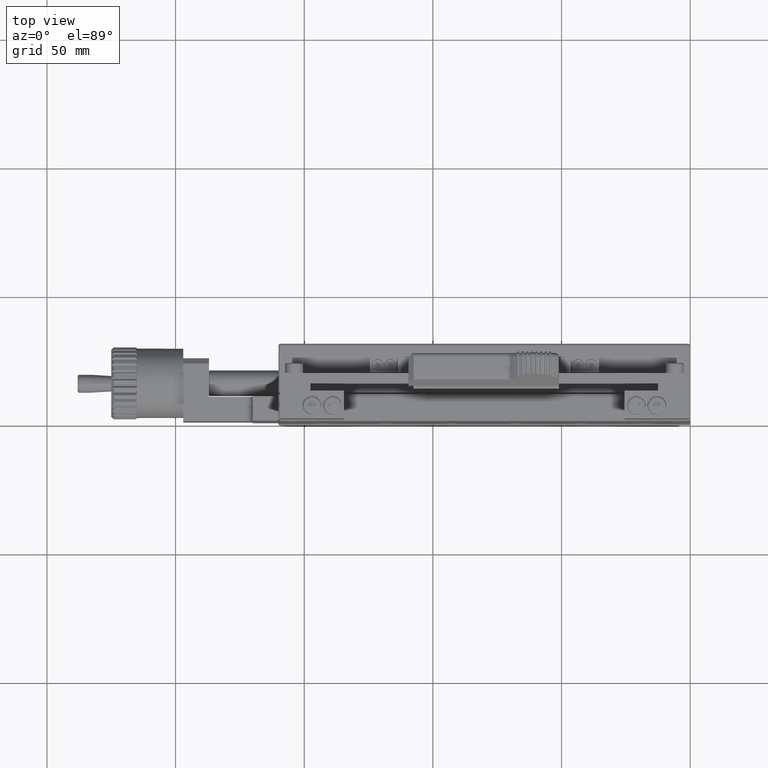
[diagram: clean part render]
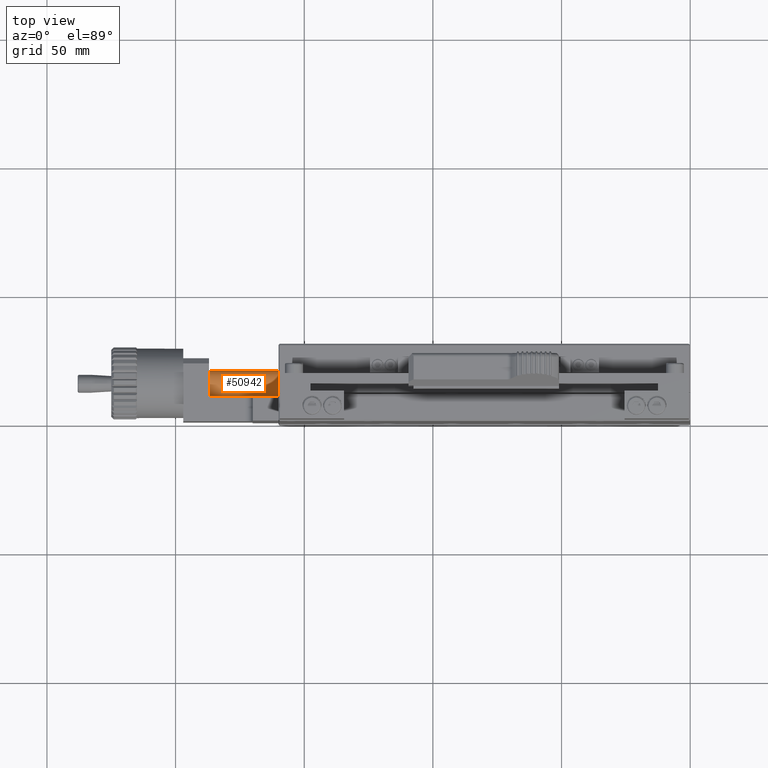
[diagram: same view with one face highlighted and labeled with its STEP entity id]
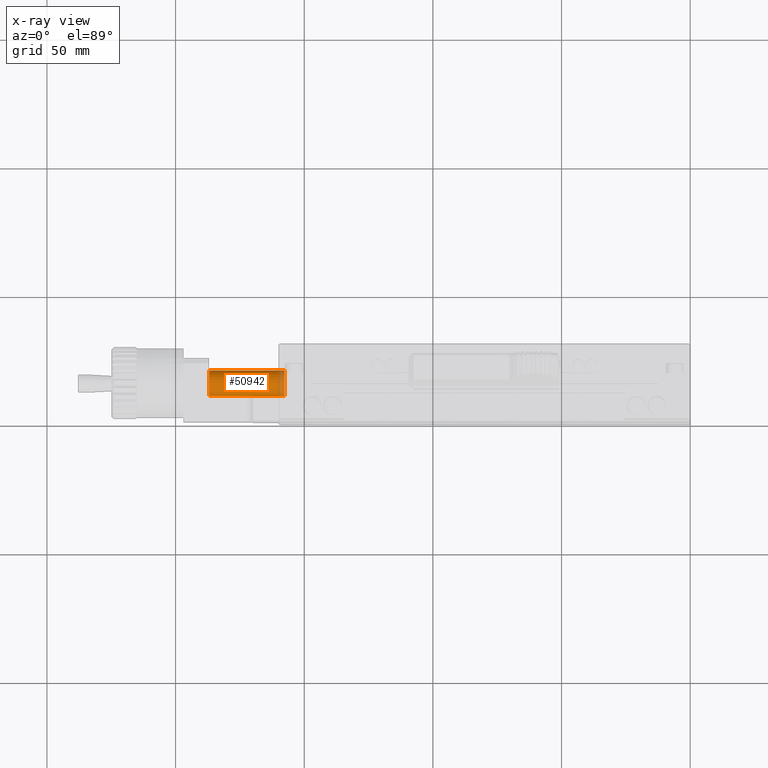
[diagram: x-ray of the same camera — body ghosted, the highlighted face saturated]
A machine part, top view. The second image highlights one B-rep face of the part: STEP entity #50942.
The next image is the same camera in x-ray: the body ghosted, the highlighted face saturated — about 8% of this face is hidden behind the body in this view.
In plain terms, the highlighted cylindrical surface (bore or boss wall) has radius 5 mm, axis along (1, 0, 0).
Its self-contained STEP definition (entity closure, byte-faithful):
#589 = FACE_OUTER_BOUND ( 'NONE', #1894, .T. ) ;
#1894 = EDGE_LOOP ( 'NONE', ( #6720 ) ) ;
#4484 = VERTEX_POINT ( 'NONE', #60445 ) ;
#4798 = CARTESIAN_POINT ( 'NONE',  ( -157.5999999999999659, 15.50000000000000000, 0.000000000000000000 ) ) ;
#5494 = EDGE_LOOP ( 'NONE', ( #10837 ) ) ;
#6720 = ORIENTED_EDGE ( 'NONE', *, *, #12371, .F. ) ;
#7027 = CIRCLE ( 'NONE', #53814, 5.000000000000000000 ) ;
#10119 = DIRECTION ( 'NONE',  ( 0.000000000000000000, 0.000000000000000000, -1.000000000000000000 ) ) ;
#10837 = ORIENTED_EDGE ( 'NONE', *, *, #27629, .T. ) ;
#12371 = EDGE_CURVE ( 'NONE', #4484, #4484, #24962, .T. ) ;
#14458 = DIRECTION ( 'NONE',  ( 0.000000000000000000, 0.000000000000000000, -1.000000000000000000 ) ) ;
#16245 = CYLINDRICAL_SURFACE ( 'NONE', #53084, 5.000000000000000000 ) ;
#19068 = VERTEX_POINT ( 'NONE', #56004 ) ;
#24962 = CIRCLE ( 'NONE', #48375, 4.999999999938609108 ) ;
#27629 = EDGE_CURVE ( 'NONE', #19068, #19068, #7027, .T. ) ;
#31532 = CARTESIAN_POINT ( 'NONE',  ( 250.0000000000000000, 15.50000000000000000, 0.000000000000000000 ) ) ;
#35742 = DIRECTION ( 'NONE',  ( -1.000000000000000000, -0.000000000000000000, -0.000000000000000000 ) ) ;
#45401 = DIRECTION ( 'NONE',  ( -1.000000000000000000, -0.000000000000000000, -0.000000000000000000 ) ) ;
#48375 = AXIS2_PLACEMENT_3D ( 'NONE', #60733, #45401, #10119 ) ;
#50942 = ADVANCED_FACE ( 'NONE', ( #589, #51514 ), #16245, .T. ) ;
#51514 = FACE_OUTER_BOUND ( 'NONE', #5494, .T. ) ;
#53084 = AXIS2_PLACEMENT_3D ( 'NONE', #31532, #61198, #57525 ) ;
#53814 = AXIS2_PLACEMENT_3D ( 'NONE', #4798, #35742, #14458 ) ;
#56004 = CARTESIAN_POINT ( 'NONE',  ( -157.5999999999999659, 15.50000000000000000, -5.000000000000000000 ) ) ;
#57525 = DIRECTION ( 'NONE',  ( 0.000000000000000000, 0.000000000000000000, -1.000000000000000000 ) ) ;
#60445 = CARTESIAN_POINT ( 'NONE',  ( -186.8000000000620275, 15.50000000000000000, -4.999999999938609108 ) ) ;
#60733 = CARTESIAN_POINT ( 'NONE',  ( -186.8000000000620275, 15.50000000000000000, 0.000000000000000000 ) ) ;
#61198 = DIRECTION ( 'NONE',  ( 1.000000000000000000, 0.000000000000000000, 0.000000000000000000 ) ) ;